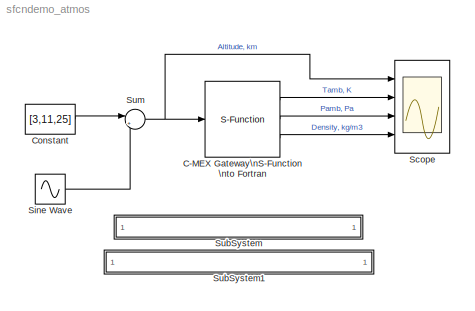
MODEL sfcndemo_atmos
KIND model
BLOCK [S-Function] C-MEX Gateway\nS-Function\nto Fortran
  FunctionName = sfun_atmos
  Parameters = 288.15,101325.0,0.0103
  Ports = [1, 3]
BLOCK [Constant] Constant
  Value = [3,11,25]
BLOCK [Scope] Scope
  DataFormat = StructureWithTime
  NumInputPorts = 4
  Ports = [4]
  TimeRange = 1200
  YMax = 30~300~150000~0.015
  YMin = 0~200~0~0
BLOCK [Sin] Sine Wave
  Amplitude = 3
  Frequency = 0.01
  Ports = [0, 1]
  SampleTime = 0
BLOCK [SubSystem] SubSystem
  MaskDisplay = disp('gateway: matlabroot<path>');
  MaskIconFrame = on
  MaskIconOpaque = on
  MaskIconRotate = none
  MaskIconUnits = autoscale
  MinAlgLoopOccurrences = off
  OpenFcn = edit(fullfile(matlabroot,'simulink','src','sfun_atmos.c'))
  Ports = []
  PropExecContextAcrossSSBoundary = on
  RTWSystemCode = Auto
  TreatAsAtomicUnit = off
BLOCK [SubSystem] SubSystem1
  MaskDisplay = disp('Fortran: matlabroot<path>');
  MaskIconFrame = on
  MaskIconOpaque = on
  MaskIconRotate = none
  MaskIconUnits = autoscale
  MinAlgLoopOccurrences = off
  OpenFcn = edit(fullfile(matlabroot,'simulink','src','sfun_atmos_sub.F'))
  Ports = []
  PropExecContextAcrossSSBoundary = on
  RTWSystemCode = Auto
  TreatAsAtomicUnit = off
BLOCK [Sum] Sum
  IconShape = round
  Inputs = |++
  Ports = [2, 1]
LINE C-MEX Gateway\nS-Function\nto Fortran:1 -> Scope:2
LINE C-MEX Gateway\nS-Function\nto Fortran:2 -> Scope:3
LINE C-MEX Gateway\nS-Function\nto Fortran:3 -> Scope:4
LINE Constant:1 -> Sum:1
LINE Sine Wave:1 -> Sum:2
NET Sum:1 -> C-MEX Gateway\nS-Function\nto Fortran:1, Scope:1
note: NET lines group one-source signal fan-out (src -> all destinations, sorted); 1:1 wires keep LINE
note: 2 file-system paths scrubbed to <path> (not preserved elsewhere — flat text is the only slx artifact)
